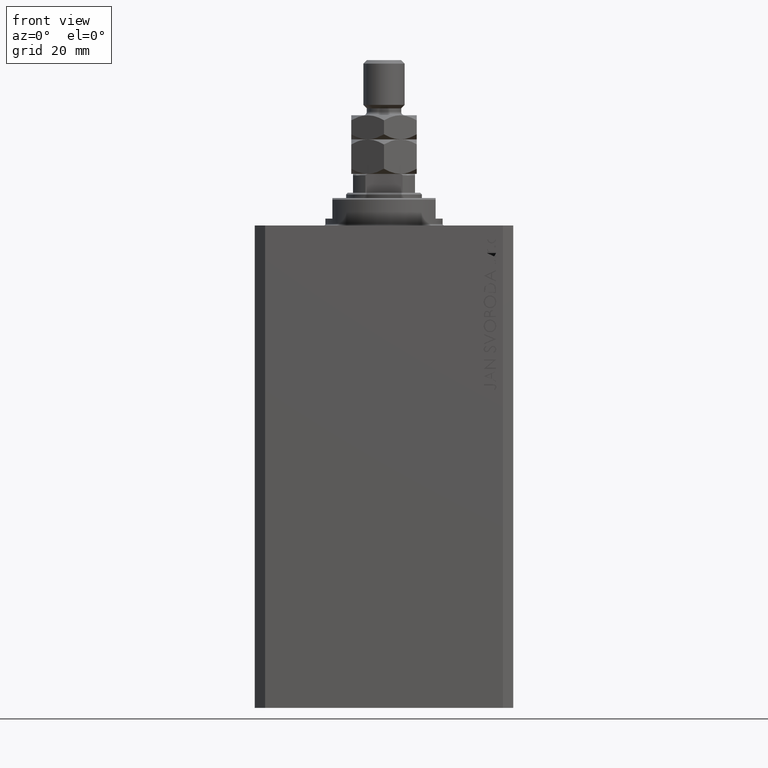
[diagram: clean part render]
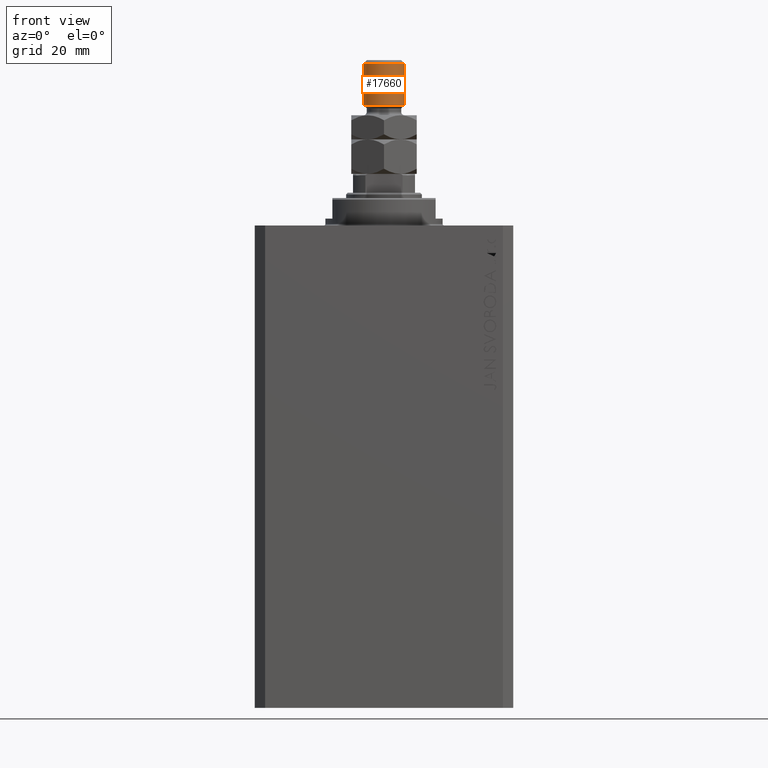
[diagram: same view with one face highlighted and labeled with its STEP entity id]
A machine part, front view. The second image highlights one B-rep face of the part: STEP entity #17660.
In plain terms, the highlighted cylindrical surface (edge-blend (fillet) strip) has radius 6 mm, axis along (-0, -0, -1).
Its self-contained STEP definition (entity closure, byte-faithful):
#2838 = CARTESIAN_POINT ( 'NONE',  ( 6.000000000000000888, 7.347880794884120722E-16, 33.00000000000000000 ) ) ;
#3412 = CIRCLE ( 'NONE', #45969, 6.000000000000000888 ) ;
#3645 = DIRECTION ( 'NONE',  ( 1.000000000000000000, 0.000000000000000000, 0.000000000000000000 ) ) ;
#7421 = AXIS2_PLACEMENT_3D ( 'NONE', #36074, #9178, #28677 ) ;
#8675 = ORIENTED_EDGE ( 'NONE', *, *, #23034, .T. ) ;
#9178 = DIRECTION ( 'NONE',  ( -0.000000000000000000, -0.000000000000000000, 1.000000000000000000 ) ) ;
#10182 = DIRECTION ( 'NONE',  ( -0.000000000000000000, -0.000000000000000000, -1.000000000000000000 ) ) ;
#11125 = ORIENTED_EDGE ( 'NONE', *, *, #14468, .T. ) ;
#13278 = CARTESIAN_POINT ( 'NONE',  ( 6.000000000000000888, 7.347880794884120722E-16, 32.00000000000000000 ) ) ;
#14468 = EDGE_CURVE ( 'NONE', #22245, #26111, #3412, .T. ) ;
#15059 = CARTESIAN_POINT ( 'NONE',  ( -6.000000000000000888, 0.000000000000000000, 32.00000000000000000 ) ) ;
#15638 = ORIENTED_EDGE ( 'NONE', *, *, #48431, .F. ) ;
#16200 = EDGE_CURVE ( 'NONE', #31930, #18849, #46042, .T. ) ;
#17660 = ADVANCED_FACE ( 'NONE', ( #33207 ), #29511, .T. ) ;
#18732 = CARTESIAN_POINT ( 'NONE',  ( -6.000000000000000888, 0.000000000000000000, 20.00000000000000711 ) ) ;
#18849 = VERTEX_POINT ( 'NONE', #28011 ) ;
#22245 = VERTEX_POINT ( 'NONE', #13278 ) ;
#22883 = DIRECTION ( 'NONE',  ( 0.000000000000000000, 0.000000000000000000, -1.000000000000000000 ) ) ;
#23034 = EDGE_CURVE ( 'NONE', #26111, #31930, #44002, .T. ) ;
#25615 = AXIS2_PLACEMENT_3D ( 'NONE', #40858, #32493, #33453 ) ;
#26111 = VERTEX_POINT ( 'NONE', #15059 ) ;
#26479 = VECTOR ( 'NONE', #10182, 1000.000000000000000 ) ;
#28011 = CARTESIAN_POINT ( 'NONE',  ( 6.000000000000000888, 7.347880794884120722E-16, 20.00000000000000711 ) ) ;
#28404 = VECTOR ( 'NONE', #32936, 1000.000000000000000 ) ;
#28677 = DIRECTION ( 'NONE',  ( 1.000000000000000000, 0.000000000000000000, 0.000000000000000000 ) ) ;
#29511 = CYLINDRICAL_SURFACE ( 'NONE', #25615, 6.000000000000000888 ) ;
#31930 = VERTEX_POINT ( 'NONE', #18732 ) ;
#32493 = DIRECTION ( 'NONE',  ( -0.000000000000000000, -0.000000000000000000, -1.000000000000000000 ) ) ;
#32936 = DIRECTION ( 'NONE',  ( -0.000000000000000000, -0.000000000000000000, -1.000000000000000000 ) ) ;
#33207 = FACE_OUTER_BOUND ( 'NONE', #36971, .T. ) ;
#33453 = DIRECTION ( 'NONE',  ( -1.000000000000000000, 0.000000000000000000, 0.000000000000000000 ) ) ;
#36074 = CARTESIAN_POINT ( 'NONE',  ( 0.000000000000000000, 0.000000000000000000, 20.00000000000000711 ) ) ;
#36592 = CARTESIAN_POINT ( 'NONE',  ( -6.000000000000000888, 0.000000000000000000, 33.00000000000000000 ) ) ;
#36971 = EDGE_LOOP ( 'NONE', ( #15638, #11125, #8675, #39336 ) ) ;
#37455 = CARTESIAN_POINT ( 'NONE',  ( 0.000000000000000000, 0.000000000000000000, 32.00000000000000000 ) ) ;
#39336 = ORIENTED_EDGE ( 'NONE', *, *, #16200, .T. ) ;
#40858 = CARTESIAN_POINT ( 'NONE',  ( 0.000000000000000000, 0.000000000000000000, 33.00000000000000000 ) ) ;
#44002 = LINE ( 'NONE', #36592, #26479 ) ;
#45969 = AXIS2_PLACEMENT_3D ( 'NONE', #37455, #22883, #3645 ) ;
#46042 = CIRCLE ( 'NONE', #7421, 6.000000000000000888 ) ;
#47509 = LINE ( 'NONE', #2838, #28404 ) ;
#48431 = EDGE_CURVE ( 'NONE', #22245, #18849, #47509, .T. ) ;